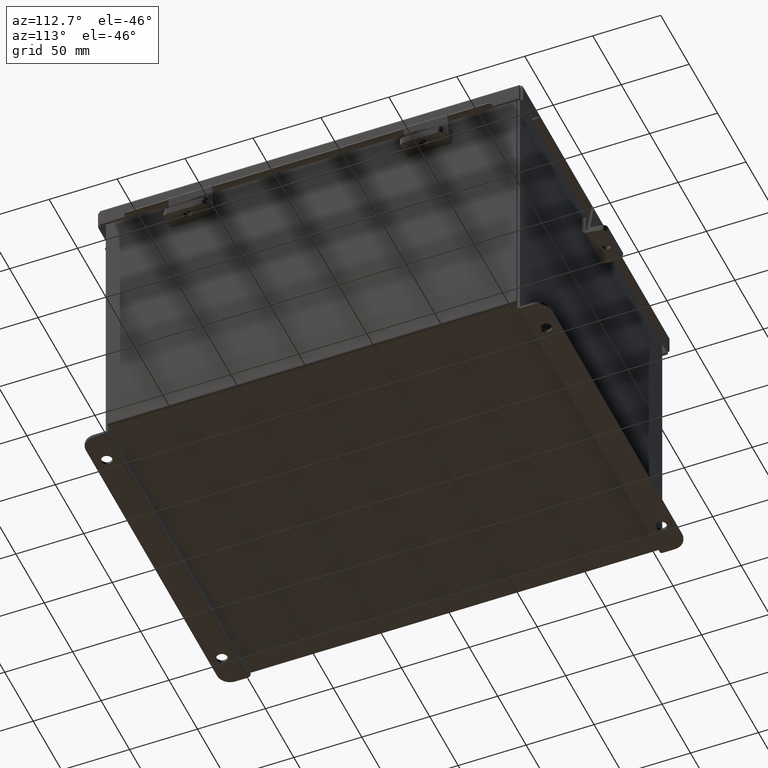
[diagram: clean part render]
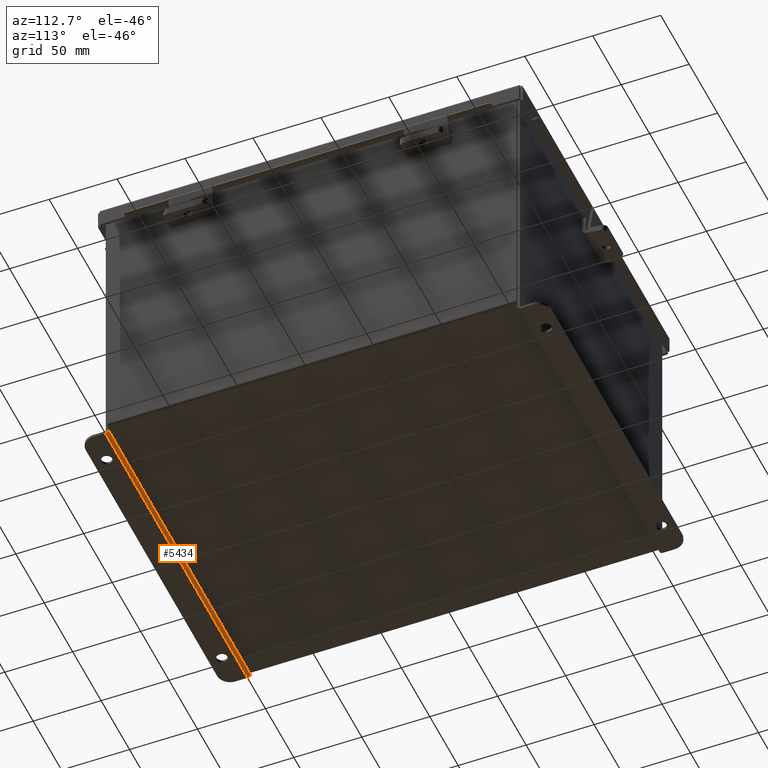
[diagram: same view with one face highlighted and labeled with its STEP entity id]
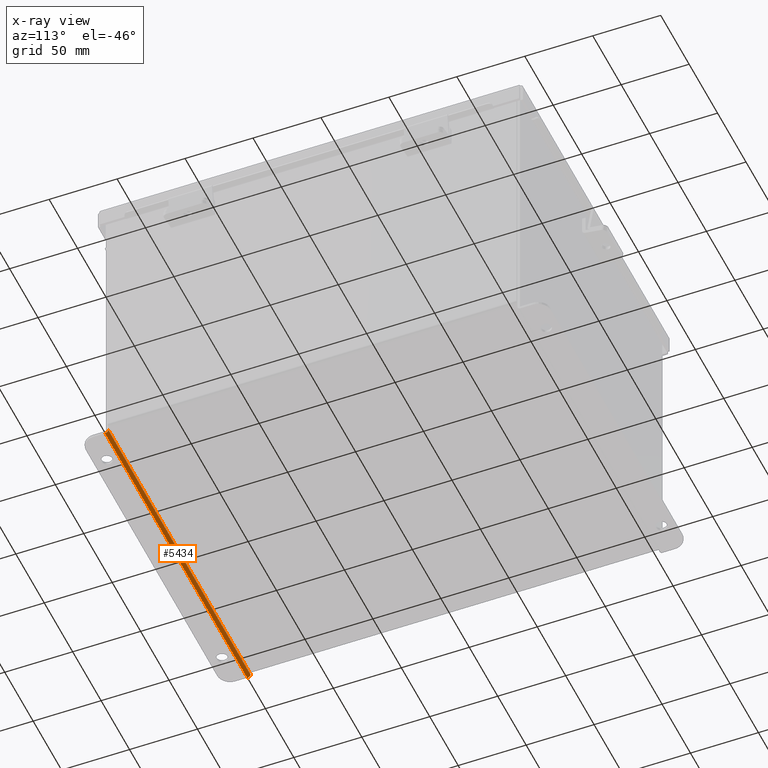
[diagram: x-ray of the same camera — body ghosted, the highlighted face saturated]
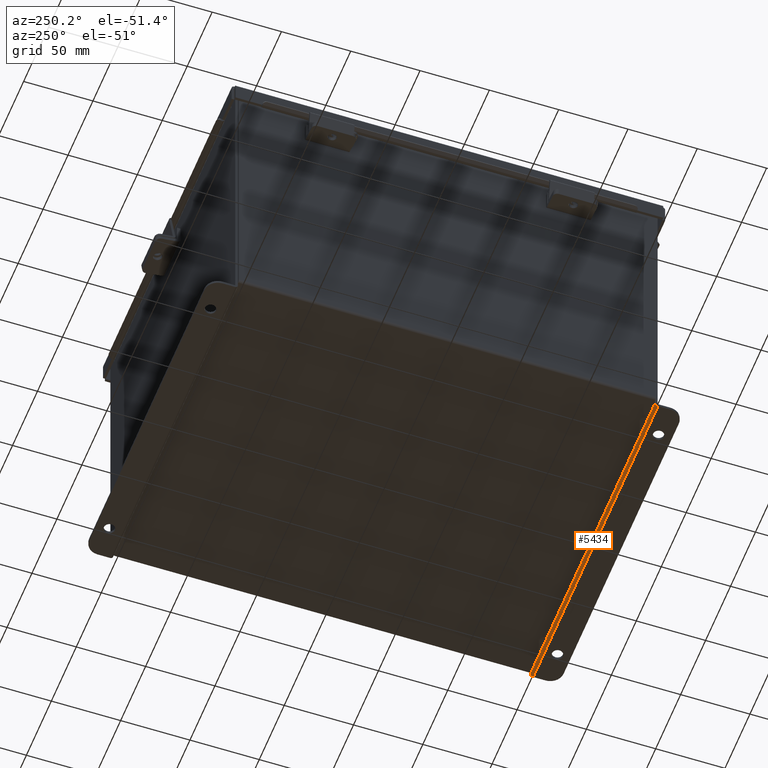
[diagram: same view with one face highlighted and labeled with its STEP entity id]
A machine part, auxiliary view. The second image highlights one B-rep face of the part: STEP entity #5434.
The next image is the same camera in x-ray: the body ghosted, the highlighted face saturated — about 0% of this face is hidden behind the body in this view.
A second angle (auxiliary view) of the same face is appended — the face is thin or edge-on in the first view.
In plain terms, the highlighted cylindrical surface (edge-blend (fillet) strip) has radius 2.2276 mm, axis along (1, 0, -0).
Its self-contained STEP definition (entity closure, byte-faithful):
#861 = DIRECTION ( 'NONE',  ( 1.000000000000000000, 4.910036603141682400E-031, -0.0000000000000000000 ) ) ;
#921 = CIRCLE ( 'NONE', #2192, 0.08770000000000026400 ) ;
#1157 = CARTESIAN_POINT ( 'NONE',  ( 4.925300000000000000, -0.07469999999999142600, -4.099299999999999500 ) ) ;
#1385 = ORIENTED_EDGE ( 'NONE', *, *, #5674, .F. ) ;
#1515 = LINE ( 'NONE', #9596, #3303 ) ;
#1717 = CARTESIAN_POINT ( 'NONE',  ( -4.925299999999999100, 0.01300000000000010700, -4.099299999999999500 ) ) ;
#2192 = AXIS2_PLACEMENT_3D ( 'NONE', #6784, #2298, #7534 ) ;
#2298 = DIRECTION ( 'NONE',  ( 1.000000000000000000, 4.910036603141682400E-031, -0.0000000000000000000 ) ) ;
#2500 = DIRECTION ( 'NONE',  ( 0.0000000000000000000, 0.0000000000000000000, 1.000000000000000000 ) ) ;
#2897 = CYLINDRICAL_SURFACE ( 'NONE', #3849, 0.08770000000000026400 ) ;
#2939 = LINE ( 'NONE', #5379, #8877 ) ;
#3117 = ORIENTED_EDGE ( 'NONE', *, *, #7121, .T. ) ;
#3158 = DIRECTION ( 'NONE',  ( 0.0000000000000000000, -3.699053013085864000E-015, -1.000000000000000000 ) ) ;
#3303 = VECTOR ( 'NONE', #5890, 39.37007874015748100 ) ;
#3849 = AXIS2_PLACEMENT_3D ( 'NONE', #5363, #6135, #3158 ) ;
#4407 = CARTESIAN_POINT ( 'NONE',  ( 4.925299999999991100, 0.01300000000000885000, -4.187000000000000300 ) ) ;
#5156 = VERTEX_POINT ( 'NONE', #1157 ) ;
#5363 = CARTESIAN_POINT ( 'NONE',  ( -4.925300000000000000, 0.01300000000000010700, -4.099299999999999500 ) ) ;
#5379 = CARTESIAN_POINT ( 'NONE',  ( 4.925299999999991100, 0.01300000000000885000, -4.187000000000000300 ) ) ;
#5434 = ADVANCED_FACE ( 'NONE', ( #7218 ), #2897, .T. ) ;
#5674 = EDGE_CURVE ( 'NONE', #9661, #5156, #1515, .T. ) ;
#5890 = DIRECTION ( 'NONE',  ( 1.000000000000000000, 4.910036603141682400E-031, -0.0000000000000000000 ) ) ;
#6135 = DIRECTION ( 'NONE',  ( -1.000000000000000000, -4.910036603141682400E-031, 0.0000000000000000000 ) ) ;
#6316 = ORIENTED_EDGE ( 'NONE', *, *, #8575, .F. ) ;
#6784 = CARTESIAN_POINT ( 'NONE',  ( 4.925300000000000000, 0.01300000000000885000, -4.099299999999999500 ) ) ;
#6876 = VERTEX_POINT ( 'NONE', #7363 ) ;
#6901 = VERTEX_POINT ( 'NONE', #4407 ) ;
#6992 = DIRECTION ( 'NONE',  ( -1.000000000000000000, -4.910036603141682400E-031, 0.0000000000000000000 ) ) ;
#7121 = EDGE_CURVE ( 'NONE', #6876, #6901, #2939, .T. ) ;
#7209 = EDGE_LOOP ( 'NONE', ( #1385, #6316, #3117, #8689 ) ) ;
#7218 = FACE_OUTER_BOUND ( 'NONE', #7209, .T. ) ;
#7363 = CARTESIAN_POINT ( 'NONE',  ( -4.925300000000008000, 0.01300000000000120000, -4.187000000000000300 ) ) ;
#7534 = DIRECTION ( 'NONE',  ( 0.0000000000000000000, 0.0000000000000000000, 1.000000000000000000 ) ) ;
#7633 = CIRCLE ( 'NONE', #8769, 0.08770000000000026400 ) ;
#7929 = CARTESIAN_POINT ( 'NONE',  ( -4.925299999999999100, -0.07470000000000015500, -4.099299999999999500 ) ) ;
#8575 = EDGE_CURVE ( 'NONE', #6876, #9661, #7633, .T. ) ;
#8689 = ORIENTED_EDGE ( 'NONE', *, *, #9237, .F. ) ;
#8769 = AXIS2_PLACEMENT_3D ( 'NONE', #1717, #6992, #2500 ) ;
#8877 = VECTOR ( 'NONE', #861, 39.37007874015748100 ) ;
#9237 = EDGE_CURVE ( 'NONE', #5156, #6901, #921, .T. ) ;
#9596 = CARTESIAN_POINT ( 'NONE',  ( -4.925300000000000000, -0.07470000000000015500, -4.099299999999999500 ) ) ;
#9661 = VERTEX_POINT ( 'NONE', #7929 ) ;